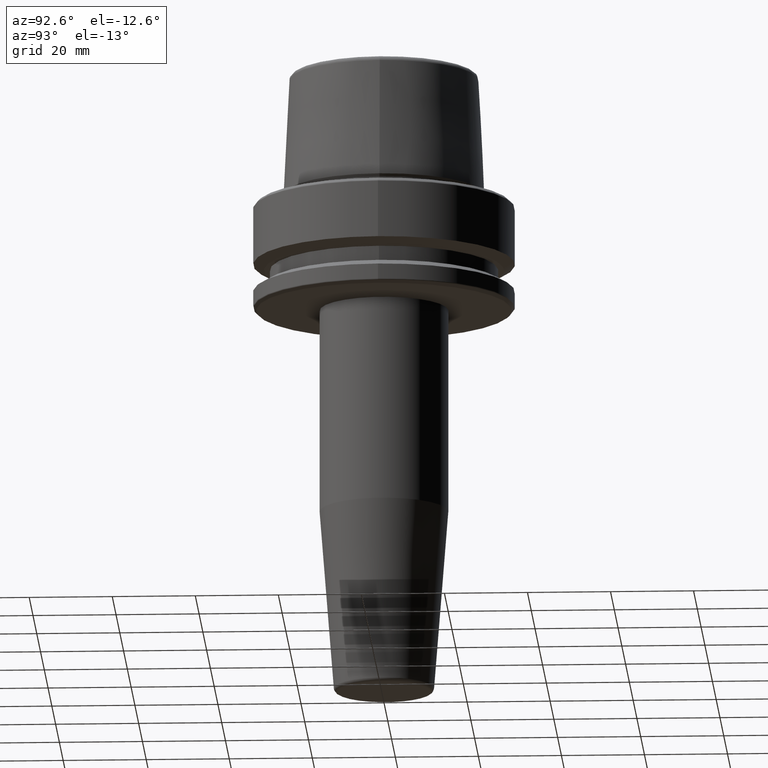
[diagram: clean part render]
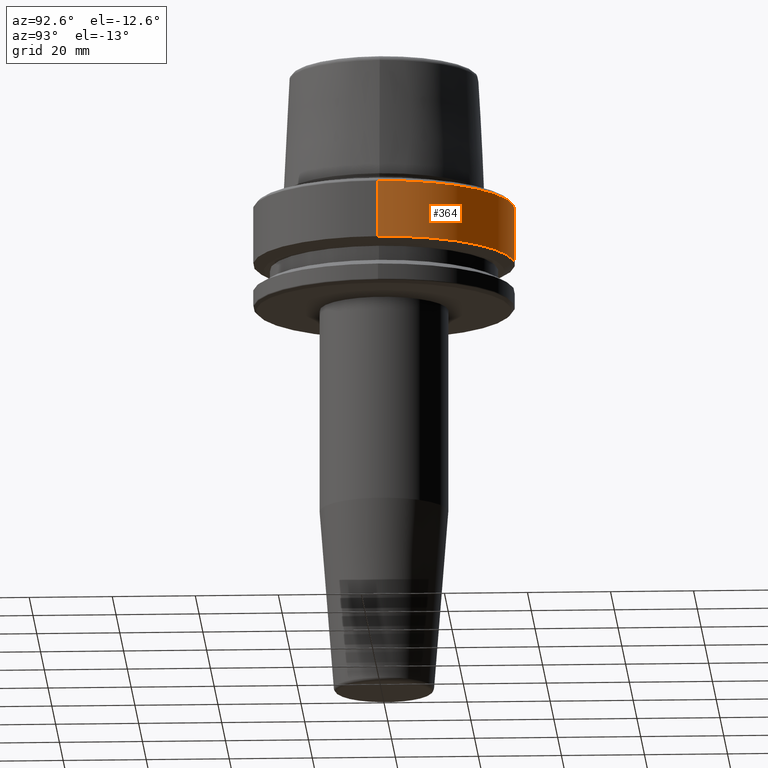
[diagram: same view with one face highlighted and labeled with its STEP entity id]
A machine part, auxiliary view. The second image highlights one B-rep face of the part: STEP entity #364.
In plain terms, the highlighted cylindrical surface (partial cylindrical patch) has radius 31.5 mm, axis along (-0, -0, 1).
Its self-contained STEP definition (entity closure, byte-faithful):
#19 = DIRECTION ( 'NONE',  ( -0.0000000000000000000, -0.0000000000000000000, 1.000000000000000000 ) ) ;
#40 = ORIENTED_EDGE ( 'NONE', *, *, #173, .F. ) ;
#49 = VERTEX_POINT ( 'NONE', #179 ) ;
#135 = VECTOR ( 'NONE', #1168, 1000.000000000000000 ) ;
#166 = ORIENTED_EDGE ( 'NONE', *, *, #617, .F. ) ;
#173 = EDGE_CURVE ( 'NONE', #1208, #49, #1256, .T. ) ;
#179 = CARTESIAN_POINT ( 'NONE',  ( 31.50000000000000000, 0.0000000000000000000, -0.9656854249492363700 ) ) ;
#243 = CARTESIAN_POINT ( 'NONE',  ( -31.50000000000000000, 3.857637417314162700E-015, 78.96908074195309300 ) ) ;
#336 = DIRECTION ( 'NONE',  ( 1.000000000000000000, 0.0000000000000000000, 0.0000000000000000000 ) ) ;
#359 = DIRECTION ( 'NONE',  ( -0.0000000000000000000, -0.0000000000000000000, 1.000000000000000000 ) ) ;
#364 = ADVANCED_FACE ( 'NONE', ( #635 ), #504, .T. ) ;
#411 = DIRECTION ( 'NONE',  ( -0.0000000000000000000, -0.0000000000000000000, 1.000000000000000000 ) ) ;
#413 = AXIS2_PLACEMENT_3D ( 'NONE', #515, #19, #898 ) ;
#459 = CARTESIAN_POINT ( 'NONE',  ( 0.0000000000000000000, 0.0000000000000000000, -0.9656854249492363700 ) ) ;
#463 = AXIS2_PLACEMENT_3D ( 'NONE', #650, #995, #950 ) ;
#504 = CYLINDRICAL_SURFACE ( 'NONE', #413, 31.50000000000000000 ) ;
#515 = CARTESIAN_POINT ( 'NONE',  ( 0.0000000000000000000, 0.0000000000000000000, 78.96908074195309300 ) ) ;
#560 = ORIENTED_EDGE ( 'NONE', *, *, #1026, .T. ) ;
#584 = CARTESIAN_POINT ( 'NONE',  ( -31.50000000000000000, 3.857637417314162700E-015, -14.62250092524070100 ) ) ;
#587 = LINE ( 'NONE', #243, #837 ) ;
#617 = EDGE_CURVE ( 'NONE', #49, #742, #727, .T. ) ;
#635 = FACE_OUTER_BOUND ( 'NONE', #1008, .T. ) ;
#650 = CARTESIAN_POINT ( 'NONE',  ( 0.0000000000000000000, 0.0000000000000000000, -14.62250092524070100 ) ) ;
#696 = VERTEX_POINT ( 'NONE', #584 ) ;
#727 = CIRCLE ( 'NONE', #1092, 31.50000000000000000 ) ;
#742 = VERTEX_POINT ( 'NONE', #859 ) ;
#837 = VECTOR ( 'NONE', #411, 1000.000000000000000 ) ;
#859 = CARTESIAN_POINT ( 'NONE',  ( -31.50000000000000000, 3.857637417314162700E-015, -0.9656854249492363700 ) ) ;
#898 = DIRECTION ( 'NONE',  ( 1.000000000000000000, 0.0000000000000000000, 0.0000000000000000000 ) ) ;
#904 = CIRCLE ( 'NONE', #463, 31.50000000000000000 ) ;
#950 = DIRECTION ( 'NONE',  ( 1.000000000000000000, 0.0000000000000000000, 0.0000000000000000000 ) ) ;
#995 = DIRECTION ( 'NONE',  ( -0.0000000000000000000, -0.0000000000000000000, 1.000000000000000000 ) ) ;
#1008 = EDGE_LOOP ( 'NONE', ( #560, #1216, #166, #40 ) ) ;
#1026 = EDGE_CURVE ( 'NONE', #1208, #696, #904, .T. ) ;
#1052 = CARTESIAN_POINT ( 'NONE',  ( 31.50000000000000000, 0.0000000000000000000, -14.62250092524070100 ) ) ;
#1092 = AXIS2_PLACEMENT_3D ( 'NONE', #459, #359, #336 ) ;
#1138 = EDGE_CURVE ( 'NONE', #696, #742, #587, .T. ) ;
#1168 = DIRECTION ( 'NONE',  ( -0.0000000000000000000, -0.0000000000000000000, 1.000000000000000000 ) ) ;
#1208 = VERTEX_POINT ( 'NONE', #1052 ) ;
#1213 = CARTESIAN_POINT ( 'NONE',  ( 31.50000000000000000, 0.0000000000000000000, 78.96908074195309300 ) ) ;
#1216 = ORIENTED_EDGE ( 'NONE', *, *, #1138, .T. ) ;
#1256 = LINE ( 'NONE', #1213, #135 ) ;